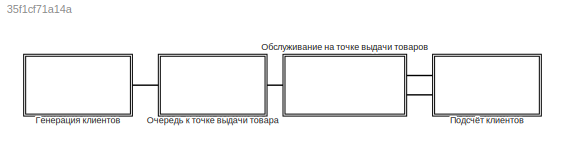
MODEL slx_35f1cf71a14a
KIND model
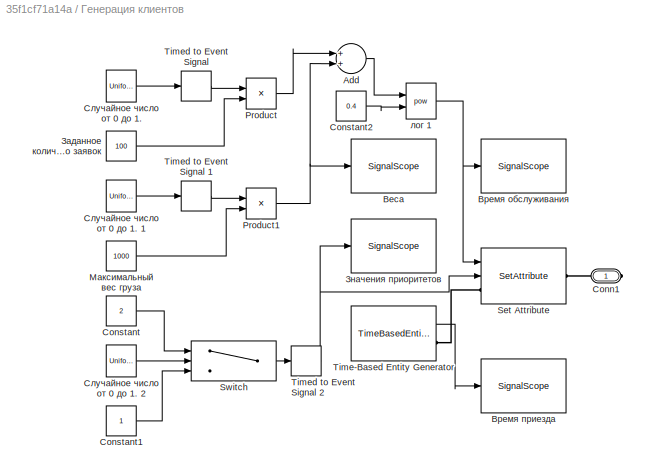
BLOCK [SubSystem] Генерация клиентов
  FunctionWithSeparateData = off
  MaskHideContents = off
  MinAlgLoopOccurrences = off
  Opaque = off
  Ports = [0, 0, 0, 0, 0, 0, 1]
  PropExecContextOutsideSubsystem = off
  RTWSystemCode = Auto
  RequestExecContextInheritance = off
BLOCK [Sum] Генерация клиентов/Add
  InputSameDT = off
  OutDataTypeStr = Inherit: Inherit via internal rule
  Ports = [2, 1]
  SaturateOnIntegerOverflow = off
BLOCK [PMIOPort] Генерация клиентов/Conn1
  Port = 1
  Side = Right
BLOCK [Constant] Генерация клиентов/Constant
  Value = 2
BLOCK [Constant] Генерация клиентов/Constant1
BLOCK [Constant] Генерация клиентов/Constant2
  Value = 0.4
BLOCK [Product] Генерация клиентов/Product
  InputSameDT = off
  OutDataTypeStr = Inherit: Inherit via internal rule
  Ports = [2, 1]
  SaturateOnIntegerOverflow = off
BLOCK [Product] Генерация клиентов/Product1
  InputSameDT = off
  OutDataTypeStr = Inherit: Inherit via internal rule
  Ports = [2, 1]
  SaturateOnIntegerOverflow = off
BLOCK [SetAttribute] Генерация клиентов/Set Attribute
  AttributeFrom = Signal port|Signal port|Dialog
  AttributeName = ServTime|Priority|In
  AttributeTreatAsVector = 1|1|1
  AttributeValue = 1|1|1
  EvaluatedAttributeValue = { []; []; 1 }
  InputPortMap = u0,u1
  Ports = [2, 0, 0, 0, 0, 1, 1]
BLOCK [Switch] Генерация клиентов/Switch
  InputSameDT = off
  SaturateOnIntegerOverflow = off
  Threshold = 0.25
BLOCK [TimeBasedEntityGenerator] Генерация клиентов/Time-Based Entity Generator
  Distribution = Exponential
  InitialSeed = 12
  Mean = 15
  OutputPortMap = o2
  Ports = [0, 1, 0, 0, 0, 0, 1]
  PriorityEntityGeneration = 500
  StatAverageIntergenerationTime = on
BLOCK [TimedToEventSignal] Генерация клиентов/Timed to Event Signal
  InputPortMap = u0
  OutputPortMap = o0
  Ports = [1, 1]
BLOCK [TimedToEventSignal] Генерация клиентов/Timed to Event Signal 1
  InputPortMap = u0
  OutputPortMap = o0
  Ports = [1, 1]
BLOCK [TimedToEventSignal] Генерация клиентов/Timed to Event Signal 2
  InputPortMap = u0
  OutputPortMap = o0
  Ports = [1, 1]
BLOCK [SignalScope] Генерация клиентов/Веса
  CopyFcn = des.scope.CallbackSupport('seCopyFcn',gcbh)
  DeleteFcn = des.scope.CallbackSupport('seDeleteFcn',gcbh)
  InputPortMap = u0
  LoadFcn = des.scope.CallbackSupport('seLoadFcn',gcbh)
  NameChangeFcn = des.scope.CallbackSupport('seNameChangeFcn',gcbh)
  OpenFcn = des.scope.CallbackSupport('seOpenFcn',gcbh)
  Ports = [1]
  PreSaveFcn = des.scope.CallbackSupport('sePreSaveFcn',gcbh)
  StartFcn = des.scope.CallbackSupport('seStartFcn',gcbh)
  StopFcn = des.scope.CallbackSupport('seStopFcn',gcbh)
BLOCK [SignalScope] Генерация клиентов/Время обслуживания
  CopyFcn = des.scope.CallbackSupport('seCopyFcn',gcbh)
  DeleteFcn = des.scope.CallbackSupport('seDeleteFcn',gcbh)
  InputPortMap = u0
  LoadFcn = des.scope.CallbackSupport('seLoadFcn',gcbh)
  NameChangeFcn = des.scope.CallbackSupport('seNameChangeFcn',gcbh)
  OpenFcn = des.scope.CallbackSupport('seOpenFcn',gcbh)
  Ports = [1]
  PreSaveFcn = des.scope.CallbackSupport('sePreSaveFcn',gcbh)
  StartFcn = des.scope.CallbackSupport('seStartFcn',gcbh)
  StopFcn = des.scope.CallbackSupport('seStopFcn',gcbh)
  XMax = 640
  YMax = 20
BLOCK [SignalScope] Генерация клиентов/Время приезда
  CopyFcn = des.scope.CallbackSupport('seCopyFcn',gcbh)
  DeleteFcn = des.scope.CallbackSupport('seDeleteFcn',gcbh)
  InputPortMap = u0
  LoadFcn = des.scope.CallbackSupport('seLoadFcn',gcbh)
  NameChangeFcn = des.scope.CallbackSupport('seNameChangeFcn',gcbh)
  OpenFcn = des.scope.CallbackSupport('seOpenFcn',gcbh)
  Ports = [1]
  PreSaveFcn = des.scope.CallbackSupport('sePreSaveFcn',gcbh)
  ShowCountPlotted = on
  StartFcn = des.scope.CallbackSupport('seStartFcn',gcbh)
  StopFcn = des.scope.CallbackSupport('seStopFcn',gcbh)
  XMax = 640
  YMax = 20
BLOCK [Constant] Генерация клиентов/Заданное количество заявок
  Value = 100
BLOCK [SignalScope] Генерация клиентов/Значения приоритетов
  CopyFcn = des.scope.CallbackSupport('seCopyFcn',gcbh)
  DeleteFcn = des.scope.CallbackSupport('seDeleteFcn',gcbh)
  InputPortMap = u0
  LoadFcn = des.scope.CallbackSupport('seLoadFcn',gcbh)
  NameChangeFcn = des.scope.CallbackSupport('seNameChangeFcn',gcbh)
  OpenFcn = des.scope.CallbackSupport('seOpenFcn',gcbh)
  Ports = [1]
  PreSaveFcn = des.scope.CallbackSupport('sePreSaveFcn',gcbh)
  StartFcn = des.scope.CallbackSupport('seStartFcn',gcbh)
  StopFcn = des.scope.CallbackSupport('seStopFcn',gcbh)
BLOCK [Constant] Генерация клиентов/Максимальный вес груза
  Value = 1000
BLOCK [UniformRandomNumber] Генерация клиентов/Случайное число от 0 до 1.
  Minimum = 0
  SampleTime = 0.1
  Seed = 12
BLOCK [UniformRandomNumber] Генерация клиентов/Случайное число от 0 до 1. 1 
  Minimum = 0
  SampleTime = 0.1
  Seed = 12
BLOCK [UniformRandomNumber] Генерация клиентов/Случайное число от 0 до 1. 2
  Minimum = 0
  SampleTime = 0.1
  Seed = 12
BLOCK [Math] Генерация клиентов/лог 1
  Operator = pow
  Ports = [2, 1]
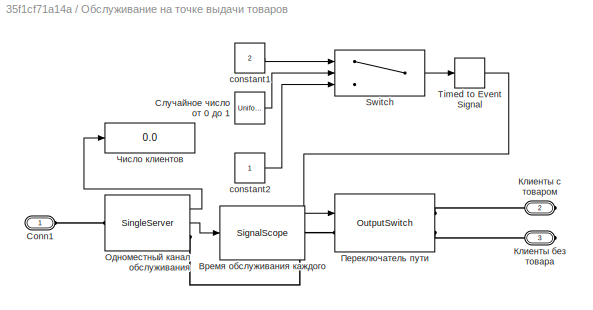
BLOCK [SubSystem] Обслуживание на точке выдачи товаров
  FunctionWithSeparateData = off
  MaskHideContents = off
  MinAlgLoopOccurrences = off
  Opaque = off
  Ports = [0, 0, 0, 0, 0, 1, 2]
  PropExecContextOutsideSubsystem = off
  RTWSystemCode = Auto
  RequestExecContextInheritance = off
BLOCK [PMIOPort] Обслуживание на точке выдачи товаров/Conn1
  Port = 1
  Side = Left
BLOCK [Switch] Обслуживание на точке выдачи товаров/Switch
  InputSameDT = off
  SaturateOnIntegerOverflow = off
  Threshold = 0.97
BLOCK [TimedToEventSignal] Обслуживание на точке выдачи товаров/Timed to Event Signal
  InputPortMap = u0
  OutputPortMap = o0
  Ports = [1, 1]
BLOCK [Constant] Обслуживание на точке выдачи товаров/constant1
  Value = 2
BLOCK [Constant] Обслуживание на точке выдачи товаров/constant2
BLOCK [SignalScope] Обслуживание на точке выдачи товаров/Время обслуживания каждого
  CopyFcn = des.scope.CallbackSupport('seCopyFcn',gcbh)
  DeleteFcn = des.scope.CallbackSupport('seDeleteFcn',gcbh)
  InputPortMap = u0
  LoadFcn = des.scope.CallbackSupport('seLoadFcn',gcbh)
  NameChangeFcn = des.scope.CallbackSupport('seNameChangeFcn',gcbh)
  OpenFcn = des.scope.CallbackSupport('seOpenFcn',gcbh)
  Ports = [1]
  PreSaveFcn = des.scope.CallbackSupport('sePreSaveFcn',gcbh)
  ShowCountPlotted = on
  StartFcn = des.scope.CallbackSupport('seStartFcn',gcbh)
  StopFcn = des.scope.CallbackSupport('seStopFcn',gcbh)
  XMax = 640
  YMax = 20
BLOCK [PMIOPort] Обслуживание на точке выдачи товаров/Клиенты без товара
  Port = 3
  Side = Right
BLOCK [PMIOPort] Обслуживание на точке выдачи товаров/Клиенты с товаром
  Port = 2
  Side = Right
BLOCK [SingleServer] Обслуживание на точке выдачи товаров/Одноместный канал обслуживания
  AttributeName = ServTime
  OutputPortMap = o0,o4
  Ports = [0, 2, 0, 0, 0, 1, 1]
  ServiceTimeFrom = Attribute
  StatAverageWait = on
  StatNumberDeparted = on
BLOCK [OutputSwitch] Обслуживание на точке выдачи товаров/Переключатель пути 
  InputPortMap = u0
  NumberOutputPorts = 2
  Ports = [1, 0, 0, 0, 0, 1, 2]
  SwitchingCriterion = From signal port p
BLOCK [UniformRandomNumber] Обслуживание на точке выдачи товаров/Случайное число от 0 до 1
  Minimum = 0
  SampleTime = 0.1
  Seed = 12
BLOCK [Display] Обслуживание на точке выдачи товаров/Число клиентов
  Decimation = 1
  Lockdown = off
  Ports = [1]
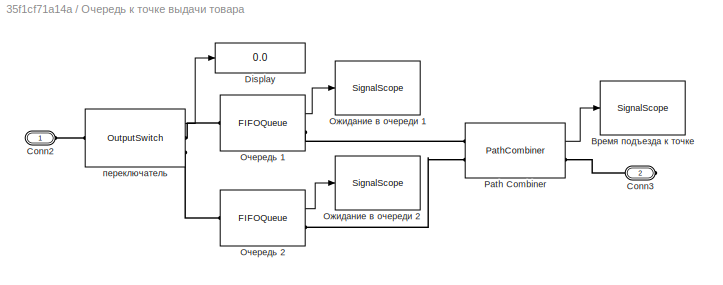
BLOCK [SubSystem] Очередь к точке выдачи товара
  FunctionWithSeparateData = off
  MaskHideContents = off
  MinAlgLoopOccurrences = off
  Opaque = off
  Ports = [0, 0, 0, 0, 0, 1, 1]
  PropExecContextOutsideSubsystem = off
  RTWSystemCode = Auto
  RequestExecContextInheritance = off
BLOCK [PMIOPort] Очередь к точке выдачи товара/Conn2
  Port = 1
  Side = Left
BLOCK [PMIOPort] Очередь к точке выдачи товара/Conn3
  Port = 2
  Side = Right
BLOCK [Display] Очередь к точке выдачи товара/Display
  Decimation = 1
  Lockdown = off
  Ports = [1]
BLOCK [PathCombiner] Очередь к точке выдачи товара/Path Combiner
  NumberInputPorts = 2
  OutputPortMap = o0
  Ports = [0, 1, 0, 0, 0, 2, 1]
  StatNumberDeparted = on
BLOCK [SignalScope] Очередь к точке выдачи товара/Время подъезда к точке
  CopyFcn = des.scope.CallbackSupport('seCopyFcn',gcbh)
  DeleteFcn = des.scope.CallbackSupport('seDeleteFcn',gcbh)
  InputPortMap = u0
  LoadFcn = des.scope.CallbackSupport('seLoadFcn',gcbh)
  NameChangeFcn = des.scope.CallbackSupport('seNameChangeFcn',gcbh)
  OpenFcn = des.scope.CallbackSupport('seOpenFcn',gcbh)
  Ports = [1]
  PreSaveFcn = des.scope.CallbackSupport('sePreSaveFcn',gcbh)
  ShowCountPlotted = on
  StartFcn = des.scope.CallbackSupport('seStartFcn',gcbh)
  StopFcn = des.scope.CallbackSupport('seStopFcn',gcbh)
BLOCK [SignalScope] Очередь к точке выдачи товара/Ожидание в очереди 1
  CopyFcn = des.scope.CallbackSupport('seCopyFcn',gcbh)
  DeleteFcn = des.scope.CallbackSupport('seDeleteFcn',gcbh)
  InputPortMap = u0
  LoadFcn = des.scope.CallbackSupport('seLoadFcn',gcbh)
  NameChangeFcn = des.scope.CallbackSupport('seNameChangeFcn',gcbh)
  OpenFcn = des.scope.CallbackSupport('seOpenFcn',gcbh)
  Ports = [1]
  PreSaveFcn = des.scope.CallbackSupport('sePreSaveFcn',gcbh)
  ShowCountPlotted = on
  StartFcn = des.scope.CallbackSupport('seStartFcn',gcbh)
  StopFcn = des.scope.CallbackSupport('seStopFcn',gcbh)
BLOCK [SignalScope] Очередь к точке выдачи товара/Ожидание в очереди 2
  CopyFcn = des.scope.CallbackSupport('seCopyFcn',gcbh)
  DeleteFcn = des.scope.CallbackSupport('seDeleteFcn',gcbh)
  InputPortMap = u0
  LoadFcn = des.scope.CallbackSupport('seLoadFcn',gcbh)
  NameChangeFcn = des.scope.CallbackSupport('seNameChangeFcn',gcbh)
  OpenFcn = des.scope.CallbackSupport('seOpenFcn',gcbh)
  Ports = [1]
  PreSaveFcn = des.scope.CallbackSupport('sePreSaveFcn',gcbh)
  ShowCountPlotted = on
  StartFcn = des.scope.CallbackSupport('seStartFcn',gcbh)
  StopFcn = des.scope.CallbackSupport('seStopFcn',gcbh)
BLOCK [FIFOQueue] Очередь к точке выдачи товара/Очередь 1
  Capacity = 10
  OutputPortMap = o2
  Ports = [0, 1, 0, 0, 0, 1, 1]
  StatAverageWait = on
BLOCK [FIFOQueue] Очередь к точке выдачи товара/Очередь 2 
  Capacity = 10
  OutputPortMap = o2
  Ports = [0, 1, 0, 0, 0, 1, 1]
  StatAverageWait = on
BLOCK [OutputSwitch] Очередь к точке выдачи товара/переключатель 
  AttributeName = Priority
  NumberOutputPorts = 2
  OutputPortMap = o0
  Ports = [0, 1, 0, 0, 0, 1, 2]
  StatNumberDeparted = on
  SwitchingCriterion = From attribute
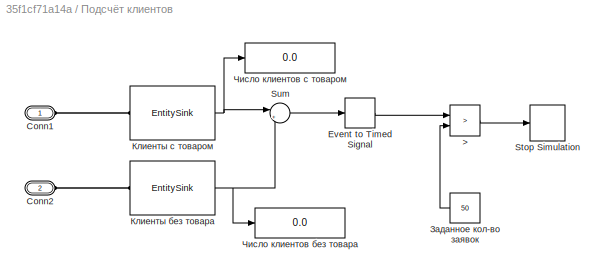
BLOCK [SubSystem] Подсчёт клиентов
  FunctionWithSeparateData = off
  MaskHideContents = off
  MinAlgLoopOccurrences = off
  Opaque = off
  Ports = [0, 0, 0, 0, 0, 2]
  PropExecContextOutsideSubsystem = off
  RTWSystemCode = Auto
  RequestExecContextInheritance = off
BLOCK [RelationalOperator] Подсчёт клиентов/>
  InputSameDT = off
  Operator = >
  OutDataTypeStr = boolean
  Ports = [2, 1]
BLOCK [PMIOPort] Подсчёт клиентов/Conn1
  Port = 1
  Side = Left
BLOCK [PMIOPort] Подсчёт клиентов/Conn2
  Port = 2
  Side = Left
BLOCK [EventToTimedSignal] Подсчёт клиентов/Event to Timed Signal
  InputPortMap = u0
  OutputPortMap = o0
  Ports = [1, 1]
BLOCK [Stop] Подсчёт клиентов/Stop Simulation
BLOCK [Sum] Подсчёт клиентов/Sum
  IconShape = round
  InputSameDT = off
  Inputs = |++
  OutDataTypeStr = Inherit: Inherit via internal rule
  Ports = [2, 1]
  SaturateOnIntegerOverflow = off
BLOCK [Constant] Подсчёт клиентов/Заданное кол-во заявок
  Value = 50
BLOCK [EntitySink] Подсчёт клиентов/Клиенты без товара
  OutputPortMap = o0
  Ports = [0, 1, 0, 0, 0, 1]
  StatNumberArrived = on
BLOCK [EntitySink] Подсчёт клиентов/Клиенты с товаром
  OutputPortMap = o0
  Ports = [0, 1, 0, 0, 0, 1]
  StatNumberArrived = on
BLOCK [Display] Подсчёт клиентов/Число клиентов без товара
  Decimation = 1
  Lockdown = off
  Ports = [1]
BLOCK [Display] Подсчёт клиентов/Число клиентов с товаром
  Decimation = 1
  Lockdown = off
  Ports = [1]
LINE Генерация клиентов/Add:1 -> Генерация клиентов/лог 1:1
LINE Генерация клиентов/Constant1:1 -> Генерация клиентов/Switch:3
LINE Генерация клиентов/Constant2:1 -> Генерация клиентов/лог 1:2
LINE Генерация клиентов/Constant:1 -> Генерация клиентов/Switch:1
NET Генерация клиентов/Product1:1 -> Генерация клиентов/Add:2, Генерация клиентов/Веса:1
LINE Генерация клиентов/Product:1 -> Генерация клиентов/Add:1
LINE Генерация клиентов/Switch:1 -> Генерация клиентов/Timed to Event Signal 2:1
LINE Генерация клиентов/Time-Based Entity Generator:1 -> Генерация клиентов/Время приезда:1
LINE Генерация клиентов/Timed to Event Signal 1:1 -> Генерация клиентов/Product1:1
NET Генерация клиентов/Timed to Event Signal 2:1 -> Генерация клиентов/Set Attribute:2, Генерация клиентов/Значения приоритетов:1
LINE Генерация клиентов/Timed to Event Signal:1 -> Генерация клиентов/Product:1
LINE Генерация клиентов/Заданное количество заявок:1 -> Генерация клиентов/Product:2
LINE Генерация клиентов/Максимальный вес груза:1 -> Генерация клиентов/Product1:2
LINE Генерация клиентов/Случайное число от 0 до 1. 1 :1 -> Генерация клиентов/Timed to Event Signal 1:1
LINE Генерация клиентов/Случайное число от 0 до 1. 2:1 -> Генерация клиентов/Switch:2
LINE Генерация клиентов/Случайное число от 0 до 1.:1 -> Генерация клиентов/Timed to Event Signal:1
NET Генерация клиентов/лог 1:1 -> Генерация клиентов/Set Attribute:1, Генерация клиентов/Время обслуживания:1
LINE Обслуживание на точке выдачи товаров/Switch:1 -> Обслуживание на точке выдачи товаров/Timed to Event Signal:1
LINE Обслуживание на точке выдачи товаров/Timed to Event Signal:1 -> Обслуживание на точке выдачи товаров/Переключатель пути :1
LINE Обслуживание на точке выдачи товаров/constant1:1 -> Обслуживание на точке выдачи товаров/Switch:1
LINE Обслуживание на точке выдачи товаров/constant2:1 -> Обслуживание на точке выдачи товаров/Switch:3
LINE Обслуживание на точке выдачи товаров/Одноместный канал обслуживания:1 -> Обслуживание на точке выдачи товаров/Число клиентов:1
LINE Обслуживание на точке выдачи товаров/Одноместный канал обслуживания:2 -> Обслуживание на точке выдачи товаров/Время обслуживания каждого:1
LINE Обслуживание на точке выдачи товаров/Случайное число от 0 до 1:1 -> Обслуживание на точке выдачи товаров/Switch:2
LINE Очередь к точке выдачи товара/Path Combiner:1 -> Очередь к точке выдачи товара/Время подъезда к точке:1
LINE Очередь к точке выдачи товара/Очередь 1:1 -> Очередь к точке выдачи товара/Ожидание в очереди 1:1
LINE Очередь к точке выдачи товара/Очередь 2 :1 -> Очередь к точке выдачи товара/Ожидание в очереди 2:1
LINE Очередь к точке выдачи товара/переключатель :1 -> Очередь к точке выдачи товара/Display:1
LINE Подсчёт клиентов/>:1 -> Подсчёт клиентов/Stop Simulation:1
LINE Подсчёт клиентов/Event to Timed Signal:1 -> Подсчёт клиентов/>:1
LINE Подсчёт клиентов/Sum:1 -> Подсчёт клиентов/Event to Timed Signal:1
LINE Подсчёт клиентов/Заданное кол-во заявок:1 -> Подсчёт клиентов/>:2
NET Подсчёт клиентов/Клиенты без товара:1 -> Подсчёт клиентов/Sum:2, Подсчёт клиентов/Число клиентов без товара:1
NET Подсчёт клиентов/Клиенты с товаром:1 -> Подсчёт клиентов/Sum:1, Подсчёт клиентов/Число клиентов с товаром:1
PLINE Генерация клиентов/Conn1:RConn1 -- Генерация клиентов/Set Attribute:RConn1
PLINE Генерация клиентов/Set Attribute:LConn1 -- Генерация клиентов/Time-Based Entity Generator:RConn1
PLINE Генерация клиентов:RConn1 -- Очередь к точке выдачи товара:LConn1
PLINE Обслуживание на точке выдачи товаров/Conn1:RConn1 -- Обслуживание на точке выдачи товаров/Одноместный канал обслуживания:LConn1
PLINE Обслуживание на точке выдачи товаров/Клиенты без товара:RConn1 -- Обслуживание на точке выдачи товаров/Переключатель пути :RConn2
PLINE Обслуживание на точке выдачи товаров/Клиенты с товаром:RConn1 -- Обслуживание на точке выдачи товаров/Переключатель пути :RConn1
PLINE Обслуживание на точке выдачи товаров/Одноместный канал обслуживания:RConn1 -- Обслуживание на точке выдачи товаров/Переключатель пути :LConn1
PLINE Обслуживание на точке выдачи товаров:LConn1 -- Очередь к точке выдачи товара:RConn1
PLINE Обслуживание на точке выдачи товаров:RConn1 -- Подсчёт клиентов:LConn1
PLINE Обслуживание на точке выдачи товаров:RConn2 -- Подсчёт клиентов:LConn2
PLINE Очередь к точке выдачи товара/Conn2:RConn1 -- Очередь к точке выдачи товара/переключатель :LConn1
PLINE Очередь к точке выдачи товара/Conn3:RConn1 -- Очередь к точке выдачи товара/Path Combiner:RConn1
PLINE Очередь к точке выдачи товара/Path Combiner:LConn1 -- Очередь к точке выдачи товара/Очередь 1:RConn1
PLINE Очередь к точке выдачи товара/Path Combiner:LConn2 -- Очередь к точке выдачи товара/Очередь 2 :RConn1
PLINE Очередь к точке выдачи товара/Очередь 1:LConn1 -- Очередь к точке выдачи товара/переключатель :RConn1
PLINE Очередь к точке выдачи товара/Очередь 2 :LConn1 -- Очередь к точке выдачи товара/переключатель :RConn2
PLINE Подсчёт клиентов/Conn1:RConn1 -- Подсчёт клиентов/Клиенты с товаром:LConn1
PLINE Подсчёт клиентов/Conn2:RConn1 -- Подсчёт клиентов/Клиенты без товара:LConn1
note: NET lines group one-source signal fan-out (src -> all destinations, sorted); 1:1 wires keep LINE
